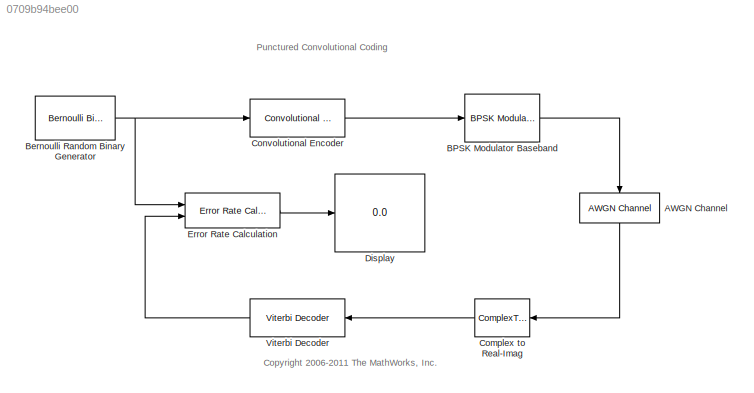
MODEL slx_0709b94bee00
KIND model
BLOCK [Reference] AWGN Channel  REF=commchan3/AWGN
Channel
  EbNodB = 10
  EsNodB = 2
  InputProcessing = Columns as channels (frame based)
  Ports = [1, 1]
  Ps = 1
  SNRdB = 10
  SourceBlock = commchan3/AWGN\nChannel
  SourceType = AWGN Channel
  Tsym = 0.75
  UserDataPersistent = on
  bitsPerSym = 1
  noiseMode = Signal to noise ratio  (Es/No)
  seed = 123456
  variance = 1
BLOCK [Reference] BPSK Modulator Baseband  REF=commdigbbndpm3/BPSK
Modulator
Baseband
  Ph = 0
  Ports = [1, 1]
  SourceBlock = commdigbbndpm3/BPSK\nModulator\nBaseband
  SourceType = BPSK Modulator Baseband
  outDtype = double
  outFracLen = 15
  outFracLenMode = Best precision
  outUDDataType = sfix(16)
  outWordLen = 16
BLOCK [Reference] Bernoulli Random Binary Generator  REF=commrandsrc2/Bernoulli Binary
Generator
  P = 0.5
  Ports = [0, 1]
  SourceBlock = commrandsrc2/Bernoulli Binary\nGenerator
  SourceType = Bernoulli Binary Generator
  Ts = 1
  frameBased = on
  orient = off
  outDataType = boolean
  sampPerFrame = 3
  seed = 435345
BLOCK [ComplexToRealImag] Complex to Real-Imag
  Output = Real
  Ports = [1, 1]
BLOCK [Reference] Convolutional Encoder  REF=commcnvcod2/Convolutional
Encoder
  DelayedResetAction = off
  Ports = [1, 1]
  SourceBlock = commcnvcod2/Convolutional\nEncoder
  SourceType = Convolutional Encoder
  hasFinStPort = off
  hasIniStPort = off
  opMode = Continuous
  punctureVector = [1 1 0 1 1 0].'
  reset = Unused parameter value
  trellis = poly2trellis(7, [171 133])
  usePuncVector = on
BLOCK [Display] Display
  Decimation = 1
  Ports = [1]
BLOCK [Reference] Error Rate Calculation  REF=commsink2/Error Rate
Calculation
  N = 96
  PMode = Port
  Ports = [2, 1]
  RsMode2 = off
  SourceBlock = commsink2/Error Rate\nCalculation
  SourceType = Error Rate Calculation
  WsName = BER_Data
  cp_mode = Entire frame
  maxBits = 1e6
  numErr = 100
  st_delay = 0
  stop = on
  subframe = []
BLOCK [Reference] Viterbi Decoder  REF=commcnvcod2/Viterbi Decoder
  Ports = [1, 1]
  SourceBlock = commcnvcod2/Viterbi Decoder
  SourceType = Viterbi Decoder
  dectype = Unquantized
  delayedResetAction = off
  erasures = off
  isPunctured = on
  nsdecb = 4
  opmode = Continuous
  outDataType = boolean
  punctureVector = [1 1 0 1 1 0].'
  reset = off
  runSigValErrCheck = off
  smWordLength = 16
  tbdepth = 96
  trellis = poly2trellis(7, [171 133])
ANNOTATION (root): <copyright redacted>
ANNOTATION (root): Punctured Convolutional Coding
LINE AWGN Channel:1 -> Complex to Real-Imag:1
LINE BPSK Modulator Baseband:1 -> AWGN Channel:1
NET Bernoulli Random Binary Generator:1 -> Convolutional Encoder:1, Error Rate Calculation:1
LINE Complex to Real-Imag:1 -> Viterbi Decoder:1
LINE Convolutional Encoder:1 -> BPSK Modulator Baseband:1
LINE Error Rate Calculation:1 -> Display:1
LINE Viterbi Decoder:1 -> Error Rate Calculation:2
note: NET lines group one-source signal fan-out (src -> all destinations, sorted); 1:1 wires keep LINE
